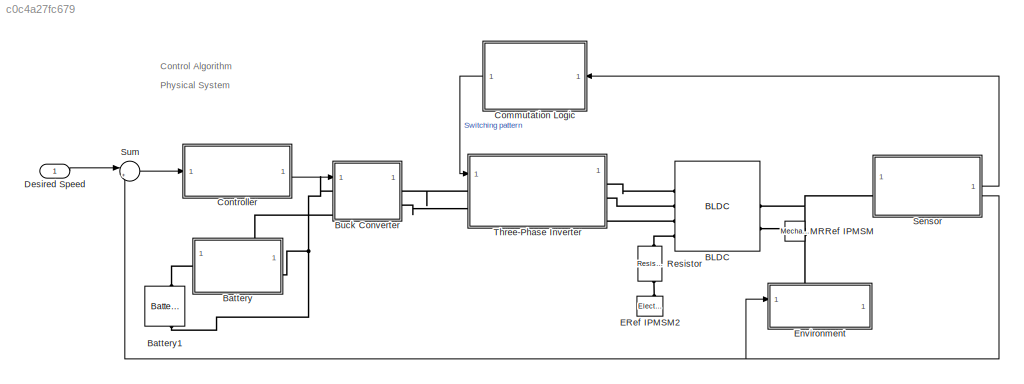
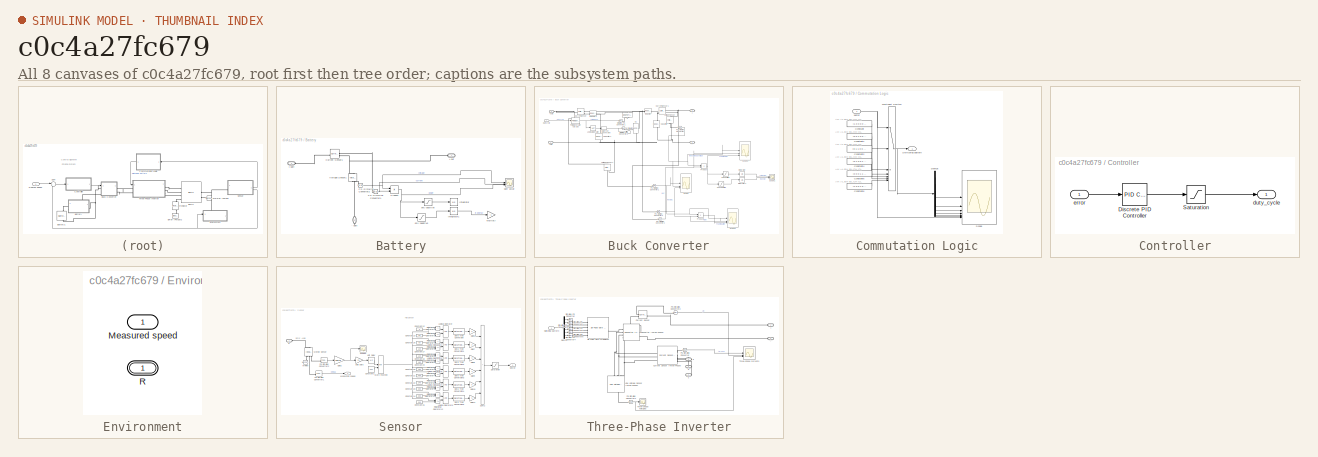
[diagram: thumbnail index - all 8 canvases of the model, root first then tree order]
MODEL slx_c0c4a27fc679
KIND model
CONFIG AbsTol = auto
CONFIG EnableMultiTasking = off
CONFIG FixedStep = auto
CONFIG MaxStep = auto
CONFIG MinStep = auto
CONFIG RelTol = 1e-3
CONFIG SampleTimeConstraint = Unconstrained
CONFIG SolverName = VariableStepAuto
CONFIG StartTime = 0.0
CONFIG StopTime = 10.0
BLOCK [Reference] BLDC  REF=ee_lib/Electromechanical/Permanent Magnet/BLDC
  SourceBlock = ee_lib/Electromechanical/Permanent Magnet/BLDC
  SourceType = BLDC
BLOCK [SubSystem] Battery
  PortSchema = {"entries":[{"content":{"sides":[{"content":{"connectorIds":["LConn1"]},"type":"ConnectorPlacement.EquallySpacedRectSide","uuid":"3ab4d702-4c5f-4315-88cb-d9b09461253d"},{"content":{"connectorIds":["RConn1"],"side":"RIGHT"},"type":"ConnectorPlacement.EquallySpacedRectSide","uuid":"0c919373-9c62-454a-be79-41a01ae39402"},{"content":{"connectorIds":["LConn2"],"side":"TOP"},"type":"ConnectorPlacement.E...<+379ch>
BLOCK [PMIOPort] Battery/+ batt
  Side = Left
BLOCK [PMIOPort] Battery/+ out
  Port = 2
  Side = Left
BLOCK [PMIOPort] Battery/- batt
  NameLocation = right
  Port = 3
  Side = Right
BLOCK [Reference] Battery/Current Sensor1  REF=fl_lib/Electrical/Electrical Sensors/Current Sensor
  SourceBlock = fl_lib/Electrical/Electrical Sensors/Current Sensor
  SourceType = Current Sensor
BLOCK [Integrator] Battery/Integrator
BLOCK [Integrator] Battery/Integrator1
BLOCK [Gain] Battery/Multiply
  Gain = -1
BLOCK [Reference] Battery/PS-Simulink Converter1  REF=nesl_utility/PS-Simulink
Converter
  SourceBlock = nesl_utility/PS-Simulink\nConverter
  SourceType = PS-Simulink\nConverter
BLOCK [Reference] Battery/PS-Simulink Converter2  REF=nesl_utility/PS-Simulink
Converter
  SourceBlock = nesl_utility/PS-Simulink\nConverter
  SourceType = PS-Simulink\nConverter
BLOCK [Product] Battery/Product
BLOCK [Reference] Battery/Voltage Sensor1  REF=fl_lib/Electrical/Electrical Sensors/Voltage Sensor
  NameLocation = right
  SourceBlock = fl_lib/Electrical/Electrical Sensors/Voltage Sensor
  SourceType = Voltage Sensor
BLOCK [Scope] Battery/batt value
  Floating = off
  NumInputPorts = 3
  ScopeSpecificationString = Simulink.scopes.TimeScopeBlockCfg('CurrentConfiguration', extmgr.ConfigurationSet(extmgr.Configuration('Core','General UI',true),extmgr.Configuration('Core','Source UI',true),extmgr.Configuration('Sources','WiredSimulink',true,'DataLoggingVariableName','ScopeData1'),extmgr.Configuration('Visuals','Time Domain',true,'SerializedDisplays',{struct('MinYLimReal','-37.58953','MaxYLimReal','15.10584','YL...<+1616ch>
BLOCK [Saturate] Battery/only negative
  LowerLimit = -inf
  UpperLimit = 0
BLOCK [Saturate] Battery/only positive
  LowerLimit = 0
  UpperLimit = inf
BLOCK [Reference] Battery1  REF=batteryecm_lib/Battery
  LibrarySourceBlock = ee_lib/Sources/Battery
  NameLocation = right
  SourceBlock = batteryecm_lib/Battery
  SourceType = Battery
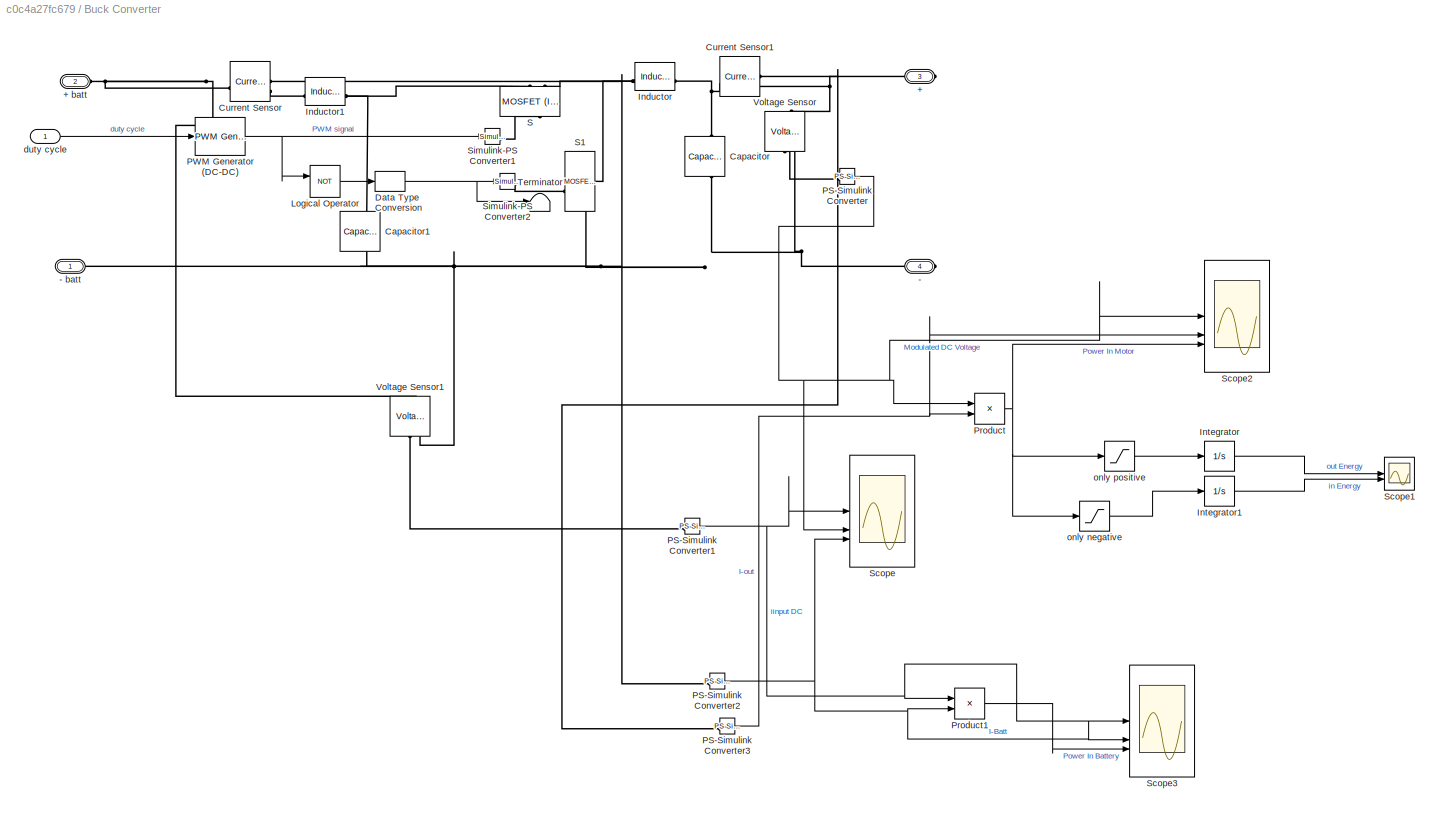
BLOCK [SubSystem] Buck Converter
BLOCK [PMIOPort] Buck Converter/+ 
  Port = 3
  Side = Right
BLOCK [PMIOPort] Buck Converter/+ batt
  Port = 2
  Side = Left
BLOCK [PMIOPort] Buck Converter/- 
  Port = 4
  Side = Right
BLOCK [PMIOPort] Buck Converter/- batt
  Side = Left
BLOCK [Reference] Buck Converter/Capacitor  REF=fl_lib/Electrical/Electrical Elements/Capacitor
  NameLocation = left
  SourceBlock = fl_lib/Electrical/Electrical Elements/Capacitor
  SourceType = Capacitor
BLOCK [Reference] Buck Converter/Capacitor1  REF=fl_lib/Electrical/Electrical Elements/Capacitor
  NameLocation = left
  SourceBlock = fl_lib/Electrical/Electrical Elements/Capacitor
  SourceType = Capacitor
BLOCK [Reference] Buck Converter/Current Sensor  REF=fl_lib/Electrical/Electrical Sensors/Current Sensor
  SourceBlock = fl_lib/Electrical/Electrical Sensors/Current Sensor
  SourceType = Current Sensor
BLOCK [Reference] Buck Converter/Current Sensor1  REF=fl_lib/Electrical/Electrical Sensors/Current Sensor
  SourceBlock = fl_lib/Electrical/Electrical Sensors/Current Sensor
  SourceType = Current Sensor
BLOCK [DataTypeConversion] Buck Converter/Data Type Conversion
  RndMeth = Floor
  SaturateOnIntegerOverflow = off
BLOCK [Reference] Buck Converter/Inductor  REF=fl_lib/Electrical/Electrical Elements/Inductor
  SourceBlock = fl_lib/Electrical/Electrical Elements/Inductor
  SourceType = Inductor
BLOCK [Reference] Buck Converter/Inductor1  REF=fl_lib/Electrical/Electrical Elements/Inductor
  SourceBlock = fl_lib/Electrical/Electrical Elements/Inductor
  SourceType = Inductor
BLOCK [Integrator] Buck Converter/Integrator
BLOCK [Integrator] Buck Converter/Integrator1
BLOCK [Logic] Buck Converter/Logical Operator
  AllPortsSameDT = off
  Operator = NOT
  OutDataTypeStr = boolean
BLOCK [Reference] Buck Converter/PS-Simulink Converter  REF=nesl_utility/PS-Simulink
Converter
  SourceBlock = nesl_utility/PS-Simulink\nConverter
  SourceType = PS-Simulink\nConverter
BLOCK [Reference] Buck Converter/PS-Simulink Converter1  REF=nesl_utility/PS-Simulink
Converter
  SourceBlock = nesl_utility/PS-Simulink\nConverter
  SourceType = PS-Simulink\nConverter
BLOCK [Reference] Buck Converter/PS-Simulink Converter2  REF=nesl_utility/PS-Simulink
Converter
  SourceBlock = nesl_utility/PS-Simulink\nConverter
  SourceType = PS-Simulink\nConverter
BLOCK [Reference] Buck Converter/PS-Simulink Converter3  REF=nesl_utility/PS-Simulink
Converter
  SourceBlock = nesl_utility/PS-Simulink\nConverter
  SourceType = PS-Simulink\nConverter
BLOCK [Reference] Buck Converter/PWM Generator (DC-DC)  REF=spsPWMGeneratorDCDCLib/PWM Generator
(DC-DC)
  LibrarySourceBlock = sps_lib/Power Electronics/Power Electronics Control/PWM Generator\n(DC-DC)
  SourceBlock = spsPWMGeneratorDCDCLib/PWM Generator\n(DC-DC)
  SourceType = PWM Generator (DC-DC)
BLOCK [Product] Buck Converter/Product
BLOCK [Product] Buck Converter/Product1
BLOCK [Reference] Buck Converter/S  REF=ee_lib/Semiconductors &
Converters/MOSFET
(Ideal,
Switching)
  NameLocation = right
  SourceBlock = ee_lib/Semiconductors &\nConverters/MOSFET\n(Ideal,\nSwitching)
  SourceType = MOSFET\n(Ideal,\nSwitching)
BLOCK [Reference] Buck Converter/S1  REF=ee_lib/Semiconductors &
Converters/MOSFET
(Ideal,
Switching)
  SourceBlock = ee_lib/Semiconductors &\nConverters/MOSFET\n(Ideal,\nSwitching)
  SourceType = MOSFET\n(Ideal,\nSwitching)
BLOCK [Scope] Buck Converter/Scope
  Floating = off
  NumInputPorts = 3
  ScopeSpecificationString = Simulink.scopes.TimeScopeBlockCfg('CurrentConfiguration', extmgr.ConfigurationSet(extmgr.Configuration('Core','General UI',true,'FigureColor',[1 1 1]),extmgr.Configuration('Core','Source UI',true),extmgr.Configuration('Sources','WiredSimulink',true,'DataLoggingVariableName','ScopeData1'),extmgr.Configuration('Visuals','Time Domain',true,'SerializedDisplays',{struct('MinYLimReal','-6.1123','MaxYLim...<+2509ch>
BLOCK [Scope] Buck Converter/Scope1
  Floating = off
  NumInputPorts = 2
  ScopeSpecificationString = Simulink.scopes.TimeScopeBlockCfg('CurrentConfiguration', extmgr.ConfigurationSet(extmgr.Configuration('Core','General UI',true),extmgr.Configuration('Core','Source UI',true),extmgr.Configuration('Sources','WiredSimulink',true),extmgr.Configuration('Visuals','Time Domain',true,'SerializedDisplays',{struct('MinYLimReal','-2850.48642','MaxYLimReal','7007.64166','YLabelReal','','MinYLimMag','  0.0000...<+1453ch>
BLOCK [Scope] Buck Converter/Scope2
  Floating = off
  NumInputPorts = 3
  ScopeSpecificationString = Simulink.scopes.TimeScopeBlockCfg('CurrentConfiguration', extmgr.ConfigurationSet(extmgr.Configuration('Core','General UI',true,'FigureColor',[1 1 1]),extmgr.Configuration('Core','Source UI',true),extmgr.Configuration('Sources','WiredSimulink',true,'DataLoggingVariableName','ScopeData4'),extmgr.Configuration('Visuals','Time Domain',true,'SerializedDisplays',{struct('MinYLimReal','-3.80213','MaxYLi...<+2512ch>
BLOCK [Scope] Buck Converter/Scope3
  Floating = off
  NumInputPorts = 3
  ScopeSpecificationString = Simulink.scopes.TimeScopeBlockCfg('CurrentConfiguration', extmgr.ConfigurationSet(extmgr.Configuration('Core','General UI',true,'FigureColor',[1 1 1]),extmgr.Configuration('Core','Source UI',true),extmgr.Configuration('Sources','WiredSimulink',true,'DataLoggingVariableName','ScopeData5'),extmgr.Configuration('Visuals','Time Domain',true,'SerializedDisplays',{struct('MinYLimReal','47.89709','MaxYLi...<+3231ch>
BLOCK [Reference] Buck Converter/Simulink-PS Converter1  REF=nesl_utility/Simulink-PS
Converter
  SourceBlock = nesl_utility/Simulink-PS\nConverter
  SourceType = Simulink-PS\nConverter
BLOCK [Reference] Buck Converter/Simulink-PS Converter2  REF=nesl_utility/Simulink-PS
Converter
  SourceBlock = nesl_utility/Simulink-PS\nConverter
  SourceType = Simulink-PS\nConverter
BLOCK [Terminator] Buck Converter/Terminator
BLOCK [Reference] Buck Converter/Voltage Sensor  REF=fl_lib/Electrical/Electrical Sensors/Voltage Sensor
  NameLocation = right
  SourceBlock = fl_lib/Electrical/Electrical Sensors/Voltage Sensor
  SourceType = Voltage Sensor
BLOCK [Reference] Buck Converter/Voltage Sensor1  REF=fl_lib/Electrical/Electrical Sensors/Voltage Sensor
  NameLocation = right
  SourceBlock = fl_lib/Electrical/Electrical Sensors/Voltage Sensor
  SourceType = Voltage Sensor
BLOCK [Inport] Buck Converter/duty cycle
BLOCK [Saturate] Buck Converter/only negative
  LowerLimit = -inf
  UpperLimit = 0
BLOCK [Saturate] Buck Converter/only positive
  LowerLimit = 0
  UpperLimit = inf
BLOCK [SubSystem] Commutation Logic
  ShowPortLabels = none
BLOCK [Outport] Commutation Logic/  Switching pattern
  VectorParamsAs1DForOutWhenUnconnected = off
BLOCK [Constant] Commutation Logic/Constant
  Value = [1 0 0 0 0 1]
BLOCK [Constant] Commutation Logic/Constant1
  Value = [0 0 1 0 0 1]
BLOCK [Constant] Commutation Logic/Constant2
  Value = [0 1 1 0 0 0]
BLOCK [Constant] Commutation Logic/Constant4
  Value = [0 1 0 0 1 0]
BLOCK [Constant] Commutation Logic/Constant5
  Value = [0 0 0 1 1 0]
BLOCK [Constant] Commutation Logic/Constant6
  Value = [1 0 0 1 0 0]
BLOCK [Demux] Commutation Logic/Demux
  Outputs = 6
BLOCK [MultiPortSwitch] Commutation Logic/Multiport Switch
  InputSameDT = off
  Inputs = 6
  SaturateOnIntegerOverflow = off
BLOCK [Scope] Commutation Logic/Scope
  Floating = off
  NumInputPorts = 7
  ScopeSpecificationString = Simulink.scopes.TimeScopeBlockCfg('CurrentConfiguration', extmgr.ConfigurationSet(extmgr.Configuration('Core','General UI',true),extmgr.Configuration('Core','Source UI',true),extmgr.Configuration('Sources','WiredSimulink',true,'DataLoggingVariableName','ScopeData1'),extmgr.Configuration('Visuals','Time Domain',true,'SerializedDisplays',{struct('MinYLimReal','-0.75','MaxYLimReal','6.75','YLabelReal...<+1733ch>
BLOCK [Inport] Commutation Logic/sector
  NameLocation = top
BLOCK [SubSystem] Controller
BLOCK [Reference] Controller/Discrete PID Controller  REF=slpidlib/PID Controller
  SourceBlock = slpidlib/PID Controller
  SourceType = PID 1dof
BLOCK [Saturate] Controller/Saturation
  LowerLimit = 0.05
  UpperLimit = inf
BLOCK [Outport] Controller/duty_cycle
BLOCK [Inport] Controller/error
BLOCK [Inport] Desired Speed
  IconDisplay = Port number and signal name
BLOCK [Reference] ERef IPMSM2  REF=fl_lib/Electrical/Electrical Elements/Electrical Reference
  NameLocation = right
  SourceBlock = fl_lib/Electrical/Electrical Elements/Electrical Reference
  SourceType = Electrical Reference
BLOCK [SubSystem] Environment
  PortSchema = {"entries":[{"content":{"sides":[{"content":{"connectorIds":["In1"]},"type":"ConnectorPlacement.EquallySpacedRectSide","uuid":"993f1980-a907-4feb-a686-97b72043eec5"},{"content":{"side":"RIGHT"},"type":"ConnectorPlacement.EquallySpacedRectSide","uuid":"0d6d4f81-bb45-41f0-a470-b2eae4ac28cb"},{"content":{"connectorIds":["LConn1"],"side":"TOP"},"type":"ConnectorPlacement.EquallySpacedRectSide","uuid":...<+224ch>
BLOCK [Inport] Environment/Measured speed
BLOCK [PMIOPort] Environment/R
  Side = Left
BLOCK [Reference] MRRef IPMSM  REF=fl_lib/Mechanical/Rotational Elements/Mechanical
Rotational Reference
  NameLocation = top
  SourceBlock = fl_lib/Mechanical/Rotational Elements/Mechanical\nRotational Reference
  SourceType = Mechanical\nRotational Reference
BLOCK [Reference] Resistor  REF=fl_lib/Electrical/Electrical Elements/Resistor
  NameLocation = left
  SourceBlock = fl_lib/Electrical/Electrical Elements/Resistor
  SourceType = Resistor
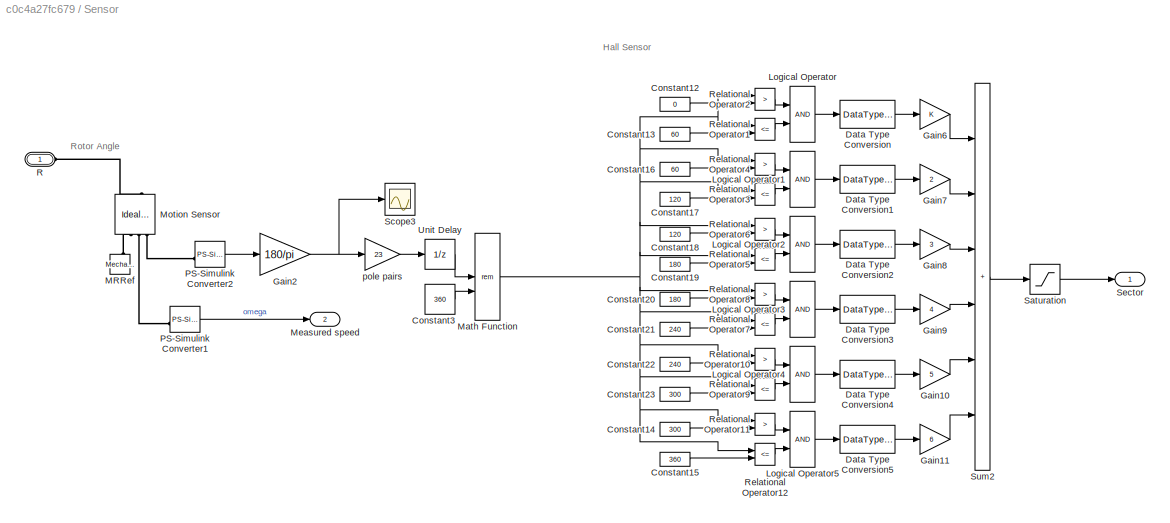
BLOCK [SubSystem] Sensor
BLOCK [Constant] Sensor/Constant12
  Value = 0
BLOCK [Constant] Sensor/Constant13
  Value = 60
BLOCK [Constant] Sensor/Constant14
  Value = 300
BLOCK [Constant] Sensor/Constant15
  Value = 360
BLOCK [Constant] Sensor/Constant16
  Value = 60
BLOCK [Constant] Sensor/Constant17
  Value = 120
BLOCK [Constant] Sensor/Constant18
  Value = 120
BLOCK [Constant] Sensor/Constant19
  Value = 180
BLOCK [Constant] Sensor/Constant20
  Value = 180
BLOCK [Constant] Sensor/Constant21
  Value = 240
BLOCK [Constant] Sensor/Constant22
  Value = 240
BLOCK [Constant] Sensor/Constant23
  Value = 300
BLOCK [Constant] Sensor/Constant3
  Value = 360
BLOCK [DataTypeConversion] Sensor/Data Type Conversion
BLOCK [DataTypeConversion] Sensor/Data Type Conversion1
BLOCK [DataTypeConversion] Sensor/Data Type Conversion2
BLOCK [DataTypeConversion] Sensor/Data Type Conversion3
BLOCK [DataTypeConversion] Sensor/Data Type Conversion4
BLOCK [DataTypeConversion] Sensor/Data Type Conversion5
BLOCK [Gain] Sensor/Gain10
  Gain = 5
  OutDataTypeStr = Inherit: Same as input
  ParamDataTypeStr = Inherit: Same as input
  SaturateOnIntegerOverflow = on
BLOCK [Gain] Sensor/Gain11
  Gain = 6
  OutDataTypeStr = Inherit: Same as input
  ParamDataTypeStr = Inherit: Same as input
  SaturateOnIntegerOverflow = on
BLOCK [Gain] Sensor/Gain2
  Gain = 180/pi
BLOCK [Gain] Sensor/Gain6
  OutDataTypeStr = Inherit: Same as input
  ParamDataTypeStr = Inherit: Same as input
  SaturateOnIntegerOverflow = on
BLOCK [Gain] Sensor/Gain7
  Gain = 2
  OutDataTypeStr = Inherit: Same as input
  ParamDataTypeStr = Inherit: Same as input
  SaturateOnIntegerOverflow = on
BLOCK [Gain] Sensor/Gain8
  Gain = 3
  OutDataTypeStr = Inherit: Same as input
  ParamDataTypeStr = Inherit: Same as input
  SaturateOnIntegerOverflow = on
BLOCK [Gain] Sensor/Gain9
  Gain = 4
  OutDataTypeStr = Inherit: Same as input
  ParamDataTypeStr = Inherit: Same as input
  SaturateOnIntegerOverflow = on
BLOCK [Logic] Sensor/Logical Operator
BLOCK [Logic] Sensor/Logical Operator1
BLOCK [Logic] Sensor/Logical Operator2
BLOCK [Logic] Sensor/Logical Operator3
BLOCK [Logic] Sensor/Logical Operator4
BLOCK [Logic] Sensor/Logical Operator5
BLOCK [Reference] Sensor/MRRef  REF=fl_lib/Mechanical/Rotational Elements/Mechanical
Rotational Reference
  NameLocation = left
  SourceBlock = fl_lib/Mechanical/Rotational Elements/Mechanical\nRotational Reference
  SourceType = Mechanical\nRotational Reference
BLOCK [Math] Sensor/Math Function
  Operator = rem
  SignedPower = on
BLOCK [Outport] Sensor/Measured speed
  Port = 2
BLOCK [Reference] Sensor/Motion Sensor  REF=fl_lib/Mechanical/Mechanical Sensors/Ideal Rotational
Motion Sensor
  NameLocation = right
  SourceBlock = fl_lib/Mechanical/Mechanical Sensors/Ideal Rotational\nMotion Sensor
  SourceType = Ideal Rotational\nMotion Sensor
BLOCK [Reference] Sensor/PS-Simulink Converter1  REF=nesl_utility/PS-Simulink
Converter
  SourceBlock = nesl_utility/PS-Simulink\nConverter
  SourceType = PS-Simulink\nConverter
BLOCK [Reference] Sensor/PS-Simulink Converter2  REF=nesl_utility/PS-Simulink
Converter
  SourceBlock = nesl_utility/PS-Simulink\nConverter
  SourceType = PS-Simulink\nConverter
BLOCK [PMIOPort] Sensor/R
  NameLocation = top
  Side = Left
BLOCK [RelationalOperator] Sensor/Relational Operator1
  Operator = <=
BLOCK [RelationalOperator] Sensor/Relational Operator10
  Operator = >
BLOCK [RelationalOperator] Sensor/Relational Operator11
  Operator = >
BLOCK [RelationalOperator] Sensor/Relational Operator12
  Operator = <=
BLOCK [RelationalOperator] Sensor/Relational Operator2
  Operator = >
BLOCK [RelationalOperator] Sensor/Relational Operator3
  Operator = <=
BLOCK [RelationalOperator] Sensor/Relational Operator4
  Operator = >
BLOCK [RelationalOperator] Sensor/Relational Operator5
  Operator = <=
BLOCK [RelationalOperator] Sensor/Relational Operator6
  Operator = >
BLOCK [RelationalOperator] Sensor/Relational Operator7
  Operator = <=
BLOCK [RelationalOperator] Sensor/Relational Operator8
  Operator = >
BLOCK [RelationalOperator] Sensor/Relational Operator9
  Operator = <=
BLOCK [Saturate] Sensor/Saturation
  LowerLimit = 1
  UpperLimit = 6
BLOCK [Scope] Sensor/Scope3
  Floating = off
  NumInputPorts = 1
  ScopeSpecificationString = Simulink.scopes.TimeScopeBlockCfg('CurrentConfiguration', extmgr.ConfigurationSet(extmgr.Configuration('Core','General UI',true),extmgr.Configuration('Core','Source UI',true),extmgr.Configuration('Sources','WiredSimulink',true,'DataLoggingVariableName','ScopeData1','DataLogging',true,'DataLoggingSaveFormat','StructureWithTime'),extmgr.Configuration('Visuals','Time Domain',true,'SerializedDisplays'...<+1543ch>
BLOCK [Outport] Sensor/Sector
  NameLocation = top
BLOCK [Sum] Sensor/Sum2
  IconShape = rectangular
  InputSameDT = on
  Inputs = ++++++
  OutDataTypeStr = Inherit: Same as first input
  SaturateOnIntegerOverflow = on
BLOCK [UnitDelay] Sensor/Unit Delay
  HasFrameUpgradeWarning = on
  SampleTime = Ts_motor
BLOCK [Gain] Sensor/pole pairs
  Gain = 23
  NameLocation = top
BLOCK [Sum] Sum
  Inputs = |+-
BLOCK [SubSystem] Three-Phase Inverter
BLOCK [PMIOPort] Three-Phase Inverter/+
  NameLocation = top
  Side = Left
BLOCK [PMIOPort] Three-Phase Inverter/-
  NameLocation = top
  Port = 2
  Side = Left
BLOCK [Reference] Three-Phase Inverter/Converter (Three-Phase)  REF=ee_lib/Semiconductors &
Converters/Converters/Converter
(Three-Phase)
  SourceBlock = ee_lib/Semiconductors &\nConverters/Converters/Converter\n(Three-Phase)
  SourceType = Converter\n(Three-Phase)
BLOCK [Reference] Three-Phase Inverter/Current Sensor  REF=fl_lib/Electrical/Electrical Sensors/Current Sensor
  SourceBlock = fl_lib/Electrical/Electrical Sensors/Current Sensor
  SourceType = Current Sensor
BLOCK [Reference] Three-Phase Inverter/Current Sensor (Three-Phase)  REF=ee_lib/Sensors &
Transducers/Current Sensor
(Three-Phase)
  SourceBlock = ee_lib/Sensors &\nTransducers/Current Sensor\n(Three-Phase)
  SourceType = Current Sensor\n(Three-Phase)
BLOCK [Demux] Three-Phase Inverter/Demux
  Outputs = 6
BLOCK [Reference] Three-Phase Inverter/Line Voltage Sensor (Three-Phase)  REF=ee_lib/Sensors &
Transducers/Line Voltage Sensor
(Three-Phase)
  NameLocation = right
  SourceBlock = ee_lib/Sensors &\nTransducers/Line Voltage Sensor\n(Three-Phase)
  SourceType = Line Voltage Sensor\n(Three-Phase)
BLOCK [Reference] Three-Phase Inverter/PS-Simulink Converter  REF=nesl_utility/PS-Simulink
Converter
  SourceBlock = nesl_utility/PS-Simulink\nConverter
  SourceType = PS-Simulink\nConverter
BLOCK [Reference] Three-Phase Inverter/PS-Simulink Converter1  REF=nesl_utility/PS-Simulink
Converter
  SourceBlock = nesl_utility/PS-Simulink\nConverter
  SourceType = PS-Simulink\nConverter
BLOCK [Reference] Three-Phase Inverter/PS-Simulink Converter2  REF=nesl_utility/PS-Simulink
Converter
  SourceBlock = nesl_utility/PS-Simulink\nConverter
  SourceType = PS-Simulink\nConverter
BLOCK [Reference] Three-Phase Inverter/Simulink-PS Converter  REF=nesl_utility/Simulink-PS
Converter
  SourceBlock = nesl_utility/Simulink-PS\nConverter
  SourceType = Simulink-PS\nConverter
BLOCK [Reference] Three-Phase Inverter/Simulink-PS Converter1  REF=nesl_utility/Simulink-PS
Converter
  SourceBlock = nesl_utility/Simulink-PS\nConverter
  SourceType = Simulink-PS\nConverter
BLOCK [Reference] Three-Phase Inverter/Simulink-PS Converter2  REF=nesl_utility/Simulink-PS
Converter
  SourceBlock = nesl_utility/Simulink-PS\nConverter
  SourceType = Simulink-PS\nConverter
BLOCK [Reference] Three-Phase Inverter/Simulink-PS Converter3  REF=nesl_utility/Simulink-PS
Converter
  SourceBlock = nesl_utility/Simulink-PS\nConverter
  SourceType = Simulink-PS\nConverter
BLOCK [Reference] Three-Phase Inverter/Simulink-PS Converter4  REF=nesl_utility/Simulink-PS
Converter
  SourceBlock = nesl_utility/Simulink-PS\nConverter
  SourceType = Simulink-PS\nConverter
BLOCK [Reference] Three-Phase Inverter/Simulink-PS Converter5  REF=nesl_utility/Simulink-PS
Converter
  SourceBlock = nesl_utility/Simulink-PS\nConverter
  SourceType = Simulink-PS\nConverter
BLOCK [Reference] Three-Phase Inverter/Six-Pulse Gate Multiplexer  REF=ee_lib/Semiconductors &
Converters/Converters/Six-Pulse Gate
Multiplexer
  SourceBlock = ee_lib/Semiconductors &\nConverters/Converters/Six-Pulse Gate\nMultiplexer
  SourceType = Six-Pulse Gate\nMultiplexer
BLOCK [Inport] Three-Phase Inverter/Switching pattern
BLOCK [Scope] Three-Phase Inverter/Three-phase currents
  Floating = off
  NumInputPorts = 3
  ScopeSpecificationString = Simulink.scopes.TimeScopeBlockCfg('CurrentConfiguration', extmgr.ConfigurationSet(extmgr.Configuration('Core','General UI',true),extmgr.Configuration('Core','Source UI',true),extmgr.Configuration('Sources','WiredSimulink',true,'DataLoggingVariableName','ScopeData1'),extmgr.Configuration('Visuals','Time Domain',true,'SerializedDisplays',{struct('MinYLimReal','-200','MaxYLimReal','200','YLabelReal',...<+1801ch>
BLOCK [Scope] Three-Phase Inverter/Three-phase voltages
  Floating = off
  NameLocation = top
  NumInputPorts = 1
  ScopeSpecificationString = Simulink.scopes.TimeScopeBlockCfg('CurrentConfiguration', extmgr.ConfigurationSet(extmgr.Configuration('Core','General UI',true),extmgr.Configuration('Core','Source UI',true),extmgr.Configuration('Sources','WiredSimulink',true,'DataLoggingVariableName','ScopeData2'),extmgr.Configuration('Visuals','Time Domain',true,'SerializedDisplays',{struct('MinYLimReal','-22.28679','MaxYLimReal','22.83538','YL...<+1514ch>
BLOCK [PMIOPort] Three-Phase Inverter/a
  Port = 3
  Side = Right
BLOCK [PMIOPort] Three-Phase Inverter/b
  Port = 4
  Side = Right
BLOCK [PMIOPort] Three-Phase Inverter/c
  Port = 5
  Side = Right
ANNOTATION (root): Control Algorithm
ANNOTATION (root): Physical System
ANNOTATION Commutation Logic: AH AL BH BL CH CL
ANNOTATION Sensor: Hall Sensor
ANNOTATION Sensor: Rotor Angle
LINE Battery/Integrator1:1 -> Battery/Multiply:1
NET Battery/PS-Simulink Converter1:1 -> Battery/Product:2, Battery/batt value:2
NET Battery/PS-Simulink Converter2:1 -> Battery/Product:1, Battery/batt value:1
NET Battery/Product:1 -> Battery/batt value:3, Battery/only negative:1, Battery/only positive:1
LINE Battery/only negative:1 -> Battery/Integrator1:1
LINE Battery/only positive:1 -> Battery/Integrator:1
NET Buck Converter/Data Type Conversion:1 -> Buck Converter/Simulink-PS Converter2:1, Buck Converter/Terminator:1
LINE Buck Converter/Integrator1:1 -> Buck Converter/Scope1:2
LINE Buck Converter/Integrator:1 -> Buck Converter/Scope1:1
LINE Buck Converter/Logical Operator:1 -> Buck Converter/Data Type Conversion:1
NET Buck Converter/PS-Simulink Converter1:1 -> Buck Converter/Product1:1, Buck Converter/Scope3:1, Buck Converter/Scope:1
NET Buck Converter/PS-Simulink Converter2:1 -> Buck Converter/Product1:2, Buck Converter/Scope3:2, Buck Converter/Scope:3
NET Buck Converter/PS-Simulink Converter3:1 -> Buck Converter/Product:2, Buck Converter/Scope2:2
NET Buck Converter/PS-Simulink Converter:1 -> Buck Converter/Product:1, Buck Converter/Scope2:1, Buck Converter/Scope:2
NET Buck Converter/PWM Generator (DC-DC):1 -> Buck Converter/Logical Operator:1, Buck Converter/Simulink-PS Converter1:1
LINE Buck Converter/Product1:1 -> Buck Converter/Scope3:3
NET Buck Converter/Product:1 -> Buck Converter/Scope2:3, Buck Converter/only negative:1, Buck Converter/only positive:1
LINE Buck Converter/duty cycle:1 -> Buck Converter/PWM Generator (DC-DC):1
LINE Buck Converter/only negative:1 -> Buck Converter/Integrator1:1
LINE Buck Converter/only positive:1 -> Buck Converter/Integrator:1
LINE Commutation Logic/Constant1:1 -> Commutation Logic/Multiport Switch:3
LINE Commutation Logic/Constant2:1 -> Commutation Logic/Multiport Switch:4
LINE Commutation Logic/Constant4:1 -> Commutation Logic/Multiport Switch:5
LINE Commutation Logic/Constant5:1 -> Commutation Logic/Multiport Switch:6
LINE Commutation Logic/Constant6:1 -> Commutation Logic/Multiport Switch:7
LINE Commutation Logic/Constant:1 -> Commutation Logic/Multiport Switch:2
LINE Commutation Logic/Demux:1 -> Commutation Logic/Scope:1
LINE Commutation Logic/Demux:2 -> Commutation Logic/Scope:2
LINE Commutation Logic/Demux:3 -> Commutation Logic/Scope:3
LINE Commutation Logic/Demux:4 -> Commutation Logic/Scope:4
LINE Commutation Logic/Demux:5 -> Commutation Logic/Scope:5
LINE Commutation Logic/Demux:6 -> Commutation Logic/Scope:6
NET Commutation Logic/Multiport Switch:1 -> Commutation Logic/  Switching pattern:1, Commutation Logic/Demux:1
NET Commutation Logic/sector:1 -> Commutation Logic/Multiport Switch:1, Commutation Logic/Scope:7
LINE Commutation Logic:1 -> Three-Phase Inverter:1
LINE Controller/Discrete PID Controller:1 -> Controller/Saturation:1
LINE Controller/Saturation:1 -> Controller/duty_cycle:1
LINE Controller/error:1 -> Controller/Discrete PID Controller:1
LINE Controller:1 -> Buck Converter:1
LINE Desired Speed:1 -> Sum:1
LINE Sensor/Constant12:1 -> Sensor/Relational Operator2:2
LINE Sensor/Constant13:1 -> Sensor/Relational Operator1:2
LINE Sensor/Constant14:1 -> Sensor/Relational Operator11:2
LINE Sensor/Constant15:1 -> Sensor/Relational Operator12:2
LINE Sensor/Constant16:1 -> Sensor/Relational Operator4:2
LINE Sensor/Constant17:1 -> Sensor/Relational Operator3:2
LINE Sensor/Constant18:1 -> Sensor/Relational Operator6:2
LINE Sensor/Constant19:1 -> Sensor/Relational Operator5:2
LINE Sensor/Constant20:1 -> Sensor/Relational Operator8:2
LINE Sensor/Constant21:1 -> Sensor/Relational Operator7:2
LINE Sensor/Constant22:1 -> Sensor/Relational Operator10:2
LINE Sensor/Constant23:1 -> Sensor/Relational Operator9:2
LINE Sensor/Constant3:1 -> Sensor/Math Function:2
LINE Sensor/Data Type Conversion1:1 -> Sensor/Gain7:1
LINE Sensor/Data Type Conversion2:1 -> Sensor/Gain8:1
LINE Sensor/Data Type Conversion3:1 -> Sensor/Gain9:1
LINE Sensor/Data Type Conversion4:1 -> Sensor/Gain10:1
LINE Sensor/Data Type Conversion5:1 -> Sensor/Gain11:1
LINE Sensor/Data Type Conversion:1 -> Sensor/Gain6:1
LINE Sensor/Gain10:1 -> Sensor/Sum2:5
LINE Sensor/Gain11:1 -> Sensor/Sum2:6
NET Sensor/Gain2:1 -> Sensor/Scope3:1, Sensor/pole pairs:1
LINE Sensor/Gain6:1 -> Sensor/Sum2:1
LINE Sensor/Gain7:1 -> Sensor/Sum2:2
LINE Sensor/Gain8:1 -> Sensor/Sum2:3
LINE Sensor/Gain9:1 -> Sensor/Sum2:4
LINE Sensor/Logical Operator1:1 -> Sensor/Data Type Conversion1:1
LINE Sensor/Logical Operator2:1 -> Sensor/Data Type Conversion2:1
LINE Sensor/Logical Operator3:1 -> Sensor/Data Type Conversion3:1
LINE Sensor/Logical Operator4:1 -> Sensor/Data Type Conversion4:1
LINE Sensor/Logical Operator5:1 -> Sensor/Data Type Conversion5:1
LINE Sensor/Logical Operator:1 -> Sensor/Data Type Conversion:1
NET Sensor/Math Function:1 -> Sensor/Relational Operator10:1, Sensor/Relational Operator11:1, Sensor/Relational Operator12:1, Sensor/Relational Operator1:1, Sensor/Relational Operator2:1, Sensor/Relational Operator3:1, Sensor/Relational Operator4:1, Sensor/Relational Operator5:1, Sensor/Relational Operator6:1, Sensor/Relational Operator7:1, Sensor/Relational Operator8:1, Sensor/Relational Operator9:1
LINE Sensor/PS-Simulink Converter1:1 -> Sensor/Measured speed:1
LINE Sensor/PS-Simulink Converter2:1 -> Sensor/Gain2:1
LINE Sensor/Relational Operator10:1 -> Sensor/Logical Operator4:1
LINE Sensor/Relational Operator11:1 -> Sensor/Logical Operator5:1
LINE Sensor/Relational Operator12:1 -> Sensor/Logical Operator5:2
LINE Sensor/Relational Operator1:1 -> Sensor/Logical Operator:2
LINE Sensor/Relational Operator2:1 -> Sensor/Logical Operator:1
LINE Sensor/Relational Operator3:1 -> Sensor/Logical Operator1:2
LINE Sensor/Relational Operator4:1 -> Sensor/Logical Operator1:1
LINE Sensor/Relational Operator5:1 -> Sensor/Logical Operator2:2
LINE Sensor/Relational Operator6:1 -> Sensor/Logical Operator2:1
LINE Sensor/Relational Operator7:1 -> Sensor/Logical Operator3:2
LINE Sensor/Relational Operator8:1 -> Sensor/Logical Operator3:1
LINE Sensor/Relational Operator9:1 -> Sensor/Logical Operator4:2
LINE Sensor/Saturation:1 -> Sensor/Sector:1
LINE Sensor/Sum2:1 -> Sensor/Saturation:1
LINE Sensor/Unit Delay:1 -> Sensor/Math Function:1
LINE Sensor/pole pairs:1 -> Sensor/Unit Delay:1
LINE Sensor:1 -> Commutation Logic:1
NET Sensor:2 -> Environment:1, Sum:2
LINE Sum:1 -> Controller:1
LINE Three-Phase Inverter/Demux:1 -> Three-Phase Inverter/Simulink-PS Converter:1
LINE Three-Phase Inverter/Demux:2 -> Three-Phase Inverter/Simulink-PS Converter1:1
LINE Three-Phase Inverter/Demux:3 -> Three-Phase Inverter/Simulink-PS Converter2:1
LINE Three-Phase Inverter/Demux:4 -> Three-Phase Inverter/Simulink-PS Converter3:1
LINE Three-Phase Inverter/Demux:5 -> Three-Phase Inverter/Simulink-PS Converter4:1
LINE Three-Phase Inverter/Demux:6 -> Three-Phase Inverter/Simulink-PS Converter5:1
NET Three-Phase Inverter/PS-Simulink Converter1:1 -> Three-Phase Inverter/Three-phase currents:3, Three-Phase Inverter/Three-phase voltages:1
LINE Three-Phase Inverter/PS-Simulink Converter2:1 -> Three-Phase Inverter/Three-phase currents:2
LINE Three-Phase Inverter/PS-Simulink Converter:1 -> Three-Phase Inverter/Three-phase currents:1
LINE Three-Phase Inverter/Switching pattern:1 -> Three-Phase Inverter/Demux:1
PLINE BLDC:LConn1 -- Three-Phase Inverter:RConn1
PLINE BLDC:LConn2 -- Three-Phase Inverter:RConn2
PLINE BLDC:LConn3 -- Three-Phase Inverter:RConn3
PLINE BLDC:LConn4 -- Resistor:LConn1
PNET net1: BLDC:RConn1 -- Environment:LConn1 -- Sensor:LConn1
PLINE BLDC:RConn2 -- MRRef IPMSM:LConn1
PLINE Battery/+ batt:RConn1 -- Battery/Current Sensor1:LConn1
PNET net2: Battery/+ out:RConn1 -- Battery/Current Sensor1:RConn2 -- Battery/Voltage Sensor1:LConn1
PLINE Battery/- batt:RConn1 -- Battery/Voltage Sensor1:RConn2
PLINE Battery/Current Sensor1:RConn1 -- Battery/PS-Simulink Converter1:LConn1
PLINE Battery/PS-Simulink Converter2:LConn1 -- Battery/Voltage Sensor1:RConn1
PLINE Battery1:LConn1 -- Battery:LConn1
PNET net3: Battery1:RConn1 -- Battery:RConn1 -- Buck Converter:LConn1
PLINE Battery:LConn2 -- Buck Converter:LConn2
PNET net4: Buck Converter/+ :RConn1 -- Buck Converter/Current Sensor1:RConn2 -- Buck Converter/Voltage Sensor:LConn1
PNET net5: Buck Converter/+ batt:RConn1 -- Buck Converter/Current Sensor:LConn1 -- Buck Converter/Voltage Sensor1:LConn1
PNET net6: Buck Converter/- :RConn1 -- Buck Converter/- batt:RConn1 -- Buck Converter/Capacitor1:RConn1 -- Buck Converter/Capacitor:RConn1 -- Buck Converter/S1:RConn2 -- Buck Converter/Voltage Sensor1:RConn2 -- Buck Converter/Voltage Sensor:RConn2
PNET net7: Buck Converter/Capacitor1:LConn1 -- Buck Converter/Inductor1:RConn1 -- Buck Converter/S:RConn1
PNET net8: Buck Converter/Capacitor:LConn1 -- Buck Converter/Current Sensor1:LConn1 -- Buck Converter/Inductor:RConn1
PLINE Buck Converter/Current Sensor1:RConn1 -- Buck Converter/PS-Simulink Converter3:LConn1
PLINE Buck Converter/Current Sensor:RConn1 -- Buck Converter/PS-Simulink Converter2:LConn1
PLINE Buck Converter/Current Sensor:RConn2 -- Buck Converter/Inductor1:LConn1
PNET net9: Buck Converter/Inductor:LConn1 -- Buck Converter/S1:RConn1 -- Buck Converter/S:RConn2
PLINE Buck Converter/PS-Simulink Converter1:LConn1 -- Buck Converter/Voltage Sensor1:RConn1
PLINE Buck Converter/PS-Simulink Converter:LConn1 -- Buck Converter/Voltage Sensor:RConn1
PLINE Buck Converter/S1:LConn1 -- Buck Converter/Simulink-PS Converter2:RConn1
PLINE Buck Converter/S:LConn1 -- Buck Converter/Simulink-PS Converter1:RConn1
PLINE Buck Converter:RConn1 -- Three-Phase Inverter:LConn1
PLINE Buck Converter:RConn2 -- Three-Phase Inverter:LConn2
PLINE ERef IPMSM2:LConn1 -- Resistor:RConn1
PLINE Sensor/MRRef:LConn1 -- Sensor/Motion Sensor:RConn1
PLINE Sensor/Motion Sensor:LConn1 -- Sensor/R:RConn1
PLINE Sensor/Motion Sensor:RConn2 -- Sensor/PS-Simulink Converter1:LConn1
PLINE Sensor/Motion Sensor:RConn3 -- Sensor/PS-Simulink Converter2:LConn1
PLINE Three-Phase Inverter/+:RConn1 -- Three-Phase Inverter/Current Sensor:LConn1
PLINE Three-Phase Inverter/-:RConn1 -- Three-Phase Inverter/Converter (Three-Phase):RConn2
PLINE Three-Phase Inverter/Converter (Three-Phase):LConn1 -- Three-Phase Inverter/Six-Pulse Gate Multiplexer:RConn1
PNET net10: Three-Phase Inverter/Converter (Three-Phase):LConn2 -- Three-Phase Inverter/Current Sensor (Three-Phase):LConn1 -- Three-Phase Inverter/Line Voltage Sensor (Three-Phase):LConn1
PNET net11: Three-Phase Inverter/Converter (Three-Phase):LConn3 -- Three-Phase Inverter/Current Sensor (Three-Phase):LConn2 -- Three-Phase Inverter/Line Voltage Sensor (Three-Phase):LConn2
PNET net12: Three-Phase Inverter/Converter (Three-Phase):LConn4 -- Three-Phase Inverter/Current Sensor (Three-Phase):LConn3 -- Three-Phase Inverter/Line Voltage Sensor (Three-Phase):LConn3
PLINE Three-Phase Inverter/Converter (Three-Phase):RConn1 -- Three-Phase Inverter/Current Sensor:RConn2
PLINE Three-Phase Inverter/Current Sensor (Three-Phase):RConn1 -- Three-Phase Inverter/PS-Simulink Converter:LConn1
PLINE Three-Phase Inverter/Current Sensor (Three-Phase):RConn2 -- Three-Phase Inverter/a:RConn1
PLINE Three-Phase Inverter/Current Sensor (Three-Phase):RConn3 -- Three-Phase Inverter/b:RConn1
PLINE Three-Phase Inverter/Current Sensor (Three-Phase):RConn4 -- Three-Phase Inverter/c:RConn1
PLINE Three-Phase Inverter/Current Sensor:RConn1 -- Three-Phase Inverter/PS-Simulink Converter2:LConn1
PLINE Three-Phase Inverter/Line Voltage Sensor (Three-Phase):RConn1 -- Three-Phase Inverter/PS-Simulink Converter1:LConn1
PLINE Three-Phase Inverter/Simulink-PS Converter1:RConn1 -- Three-Phase Inverter/Six-Pulse Gate Multiplexer:LConn2
PLINE Three-Phase Inverter/Simulink-PS Converter2:RConn1 -- Three-Phase Inverter/Six-Pulse Gate Multiplexer:LConn3
PLINE Three-Phase Inverter/Simulink-PS Converter3:RConn1 -- Three-Phase Inverter/Six-Pulse Gate Multiplexer:LConn4
PLINE Three-Phase Inverter/Simulink-PS Converter4:RConn1 -- Three-Phase Inverter/Six-Pulse Gate Multiplexer:LConn5
PLINE Three-Phase Inverter/Simulink-PS Converter5:RConn1 -- Three-Phase Inverter/Six-Pulse Gate Multiplexer:LConn6
PLINE Three-Phase Inverter/Simulink-PS Converter:RConn1 -- Three-Phase Inverter/Six-Pulse Gate Multiplexer:LConn1
note: NET lines group one-source signal fan-out (src -> all destinations, sorted); 1:1 wires keep LINE; PNET lines group multi-terminal physical nets as a canonical sorted terminal list (undirected conserving connections); 2-terminal nets keep the pairwise PLINE form
